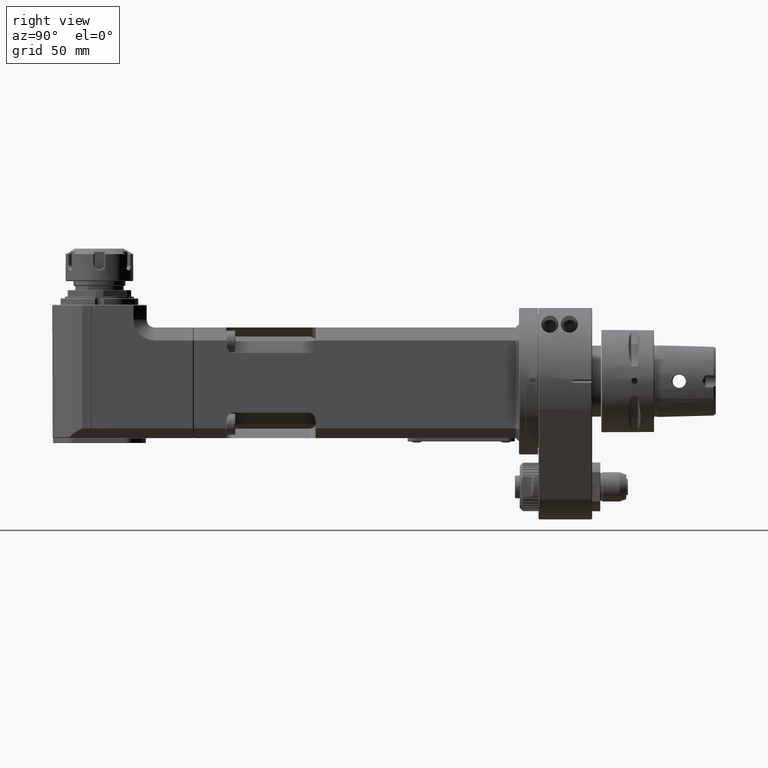
[diagram: clean part render]
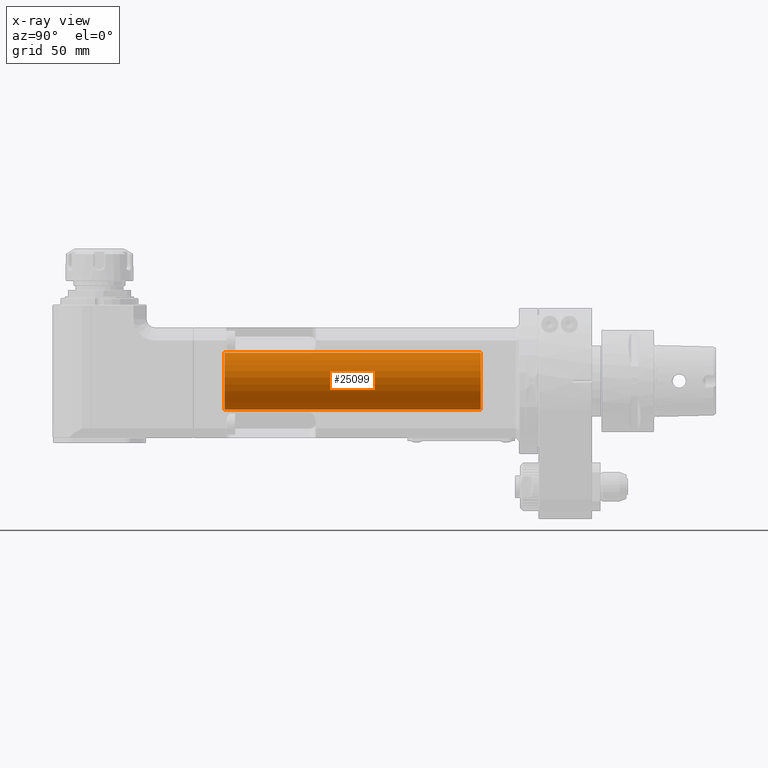
[diagram: x-ray — body ghosted, one internal face saturated and labeled with its STEP entity id]
A machine part, right view, then the same camera in x-ray: the body is ghosted and one INTERNAL B-rep face — a face not visible from any outside direction — is saturated and labeled: STEP entity #25099.
In plain terms, the highlighted cylindrical surface (bore or boss wall) has radius 17.5 mm, axis along (-0, 1, -0).
Its self-contained STEP definition (entity closure, byte-faithful):
#2379=FACE_OUTER_BOUND('',#3947,.T.);
#3947=EDGE_LOOP('',(#18503,#18504,#18505,#18506));
#5734=CIRCLE('',#26983,17.5);
#5735=CIRCLE('',#26985,17.5);
#6964=LINE('',#39261,#9002);
#9002=VECTOR('',#30546,17.5);
#11185=VERTEX_POINT('',#39257);
#11186=VERTEX_POINT('',#39260);
#13951=EDGE_CURVE('',#11185,#11185,#5734,.T.);
#13952=EDGE_CURVE('',#11185,#11186,#6964,.T.);
#13953=EDGE_CURVE('',#11186,#11186,#5735,.T.);
#18503=ORIENTED_EDGE('',*,*,#13951,.F.);
#18504=ORIENTED_EDGE('',*,*,#13952,.T.);
#18505=ORIENTED_EDGE('',*,*,#13953,.F.);
#18506=ORIENTED_EDGE('',*,*,#13952,.F.);
#24599=CYLINDRICAL_SURFACE('',#26984,17.5);
#25099=ADVANCED_FACE('',(#2379),#24599,.F.);
#26983=AXIS2_PLACEMENT_3D('',#39258,#30542,#30543);
#26984=AXIS2_PLACEMENT_3D('',#39259,#30544,#30545);
#26985=AXIS2_PLACEMENT_3D('',#39262,#30547,#30548);
#30542=DIRECTION('center_axis',(0.,1.,0.));
#30543=DIRECTION('ref_axis',(0.,0.,-1.));
#30544=DIRECTION('center_axis',(0.,1.,0.));
#30545=DIRECTION('ref_axis',(0.,0.,-1.));
#30546=DIRECTION('',(0.,1.,0.));
#30547=DIRECTION('center_axis',(0.,-1.,0.));
#30548=DIRECTION('ref_axis',(0.,0.,1.));
#39257=CARTESIAN_POINT('',(2.14313189850787E-15,-193.,17.5));
#39258=CARTESIAN_POINT('Origin',(0.,-193.,2.406431960325E-14));
#39259=CARTESIAN_POINT('Origin',(0.,-223.85,2.595333729093E-14));
#39260=CARTESIAN_POINT('',(2.14313189850787E-15,-35.5,17.5));
#39261=CARTESIAN_POINT('',(2.14313189850787E-15,-223.85,17.5));
#39262=CARTESIAN_POINT('Origin',(0.,-35.5,1.442022605996E-14));